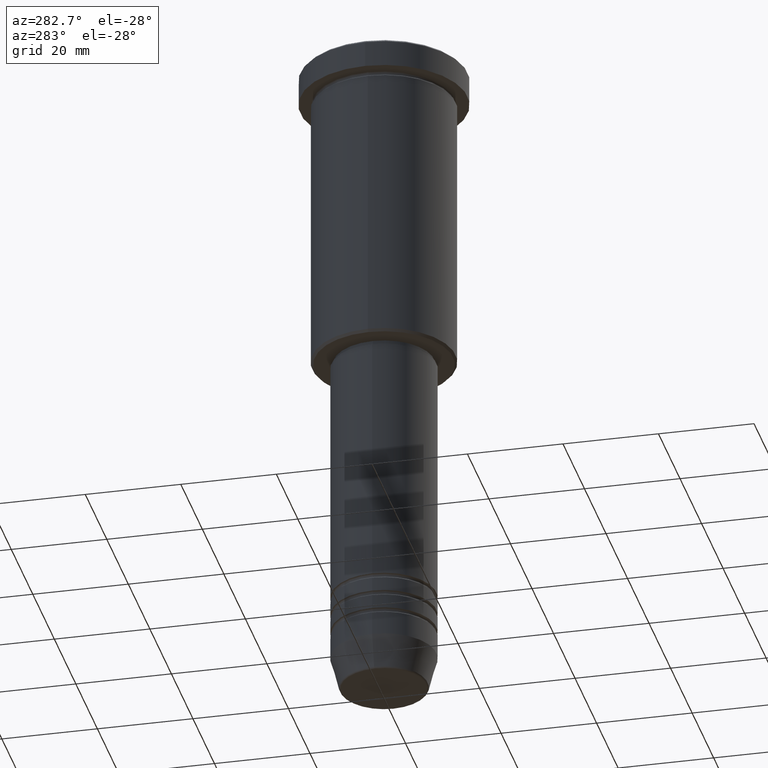
[diagram: clean part render]
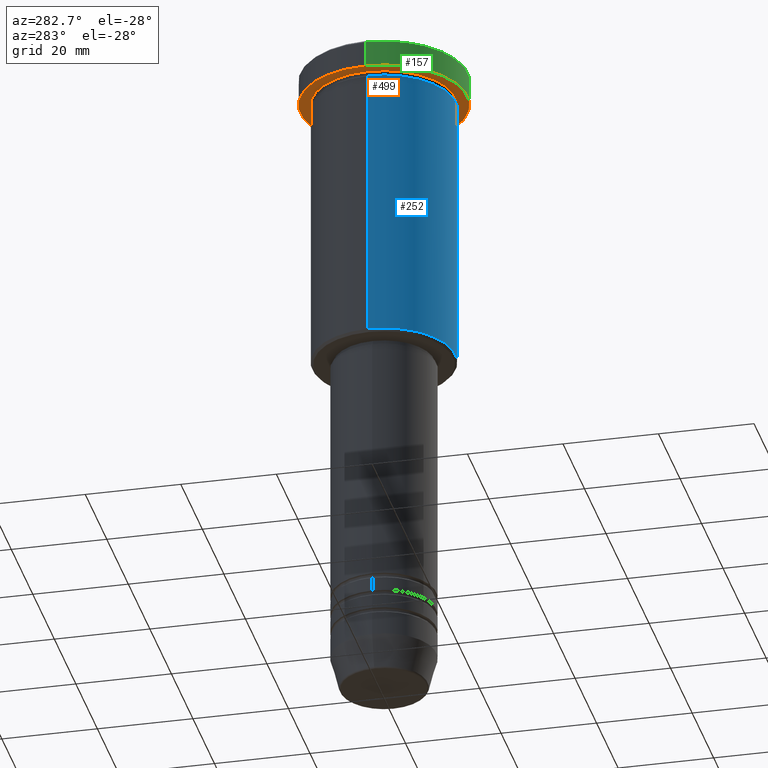
[diagram: same view with three faces highlighted in distinct colors, each labeled with its STEP entity id]
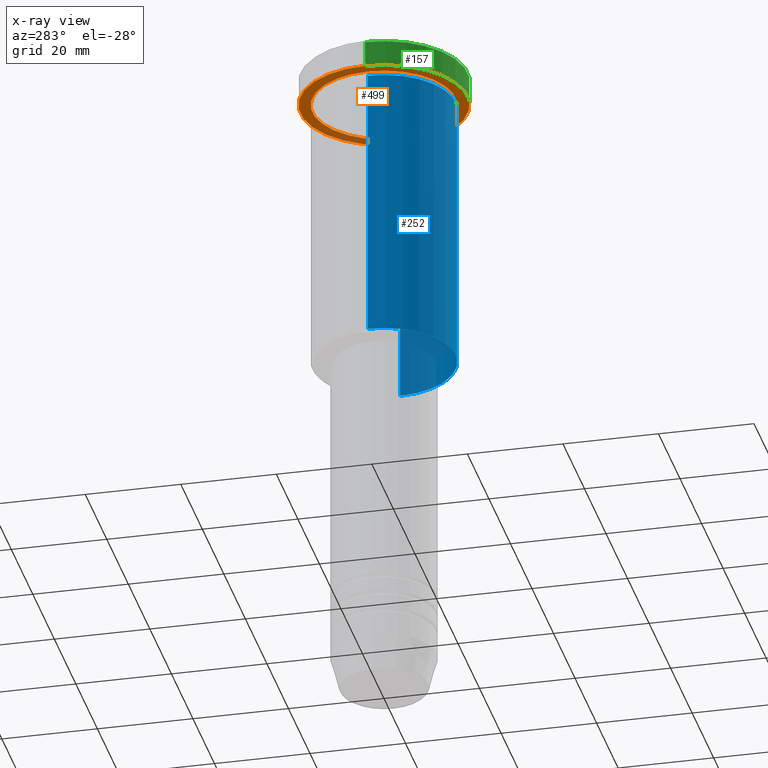
[diagram: x-ray of the same camera — body ghosted, the three highlighted faces saturated]
A machine part, auxiliary view with three faces highlighted in distinct colors.
The next image is the same camera in x-ray (body ghosted, the three faces saturated) — at least one of them is partly hidden behind the body in this view.
Their STEP definitions:

[orange] entity #499 — the highlighted planar face has unit normal (0, 0, -1).
#30 = DIRECTION ( 'NONE',  ( -0.000000000000000000, -0.000000000000000000, 1.000000000000000000 ) ) ;
#37 = VERTEX_POINT ( 'NONE', #913 ) ;
#116 = VERTEX_POINT ( 'NONE', #598 ) ;
#146 = CARTESIAN_POINT ( 'NONE',  ( 0.000000000000000000, 0.000000000000000000, -5.999999999999995559 ) ) ;
#151 = VERTEX_POINT ( 'NONE', #921 ) ;
#178 = EDGE_CURVE ( 'NONE', #37, #151, #182, .T. ) ;
#182 = CIRCLE ( 'NONE', #330, 17.50000000000000000 ) ;
#220 = AXIS2_PLACEMENT_3D ( 'NONE', #146, #30, #406 ) ;
#240 = FACE_OUTER_BOUND ( 'NONE', #1042, .T. ) ;
#268 = ORIENTED_EDGE ( 'NONE', *, *, #1156, .T. ) ;
#330 = AXIS2_PLACEMENT_3D ( 'NONE', #1045, #1038, #662 ) ;
#346 = CARTESIAN_POINT ( 'NONE',  ( 0.000000000000000000, 0.000000000000000000, -5.999999999999995559 ) ) ;
#385 = AXIS2_PLACEMENT_3D ( 'NONE', #518, #882, #862 ) ;
#400 = AXIS2_PLACEMENT_3D ( 'NONE', #346, #708, #696 ) ;
#406 = DIRECTION ( 'NONE',  ( 1.000000000000000000, 0.000000000000000000, 0.000000000000000000 ) ) ;
#434 = CIRCLE ( 'NONE', #220, 17.50000000000000000 ) ;
#439 = EDGE_CURVE ( 'NONE', #818, #116, #994, .T. ) ;
#456 = DIRECTION ( 'NONE',  ( -1.000000000000000000, 0.000000000000000000, -0.000000000000000000 ) ) ;
#464 = CARTESIAN_POINT ( 'NONE',  ( 0.000000000000000000, 17.50000000000000000, -5.999999999999995559 ) ) ;
#499 = ADVANCED_FACE ( 'NONE', ( #700, #240 ), #652, .T. ) ;
#518 = CARTESIAN_POINT ( 'NONE',  ( 0.000000000000000000, 0.000000000000000000, -5.999999999999995559 ) ) ;
#598 = CARTESIAN_POINT ( 'NONE',  ( 15.00000000000000000, 1.836970198721029589E-15, -5.999999999999994671 ) ) ;
#634 = CARTESIAN_POINT ( 'NONE',  ( -15.00000000000000000, 0.000000000000000000, -5.999999999999994671 ) ) ;
#652 = PLANE ( 'NONE',  #924 ) ;
#662 = DIRECTION ( 'NONE',  ( 1.000000000000000000, 0.000000000000000000, 0.000000000000000000 ) ) ;
#696 = DIRECTION ( 'NONE',  ( -1.000000000000000000, 0.000000000000000000, 0.000000000000000000 ) ) ;
#700 = FACE_BOUND ( 'NONE', #906, .T. ) ;
#708 = DIRECTION ( 'NONE',  ( -0.000000000000000000, -0.000000000000000000, 1.000000000000000000 ) ) ;
#818 = VERTEX_POINT ( 'NONE', #634 ) ;
#830 = DIRECTION ( 'NONE',  ( 0.000000000000000000, 0.000000000000000000, -1.000000000000000000 ) ) ;
#843 = CIRCLE ( 'NONE', #385, 15.00000000000000000 ) ;
#862 = DIRECTION ( 'NONE',  ( -1.000000000000000000, 0.000000000000000000, 0.000000000000000000 ) ) ;
#882 = DIRECTION ( 'NONE',  ( -0.000000000000000000, -0.000000000000000000, 1.000000000000000000 ) ) ;
#906 = EDGE_LOOP ( 'NONE', ( #1034, #268 ) ) ;
#913 = CARTESIAN_POINT ( 'NONE',  ( 17.50000000000000000, 0.000000000000000000, -5.999999999999995559 ) ) ;
#921 = CARTESIAN_POINT ( 'NONE',  ( -17.50000000000000000, 2.143131898507868248E-15, -5.999999999999995559 ) ) ;
#924 = AXIS2_PLACEMENT_3D ( 'NONE', #464, #830, #456 ) ;
#994 = CIRCLE ( 'NONE', #400, 15.00000000000000000 ) ;
#1034 = ORIENTED_EDGE ( 'NONE', *, *, #439, .T. ) ;
#1038 = DIRECTION ( 'NONE',  ( -0.000000000000000000, -0.000000000000000000, 1.000000000000000000 ) ) ;
#1042 = EDGE_LOOP ( 'NONE', ( #1131, #1179 ) ) ;
#1045 = CARTESIAN_POINT ( 'NONE',  ( 0.000000000000000000, 0.000000000000000000, -5.999999999999995559 ) ) ;
#1046 = EDGE_CURVE ( 'NONE', #151, #37, #434, .T. ) ;
#1131 = ORIENTED_EDGE ( 'NONE', *, *, #178, .F. ) ;
#1156 = EDGE_CURVE ( 'NONE', #116, #818, #843, .T. ) ;
#1179 = ORIENTED_EDGE ( 'NONE', *, *, #1046, .F. ) ;

[blue] entity #252 — the highlighted cylindrical surface (partial cylindrical patch) has radius 15 mm, axis along (-0, -0, 1).
#13 = ORIENTED_EDGE ( 'NONE', *, *, #1041, .T. ) ;
#33 = VECTOR ( 'NONE', #768, 1000.000000000000000 ) ;
#39 = LINE ( 'NONE', #508, #33 ) ;
#131 = DIRECTION ( 'NONE',  ( -0.000000000000000000, -0.000000000000000000, 1.000000000000000000 ) ) ;
#249 = CARTESIAN_POINT ( 'NONE',  ( 0.000000000000000000, 0.000000000000000000, 0.000000000000000000 ) ) ;
#252 = ADVANCED_FACE ( 'NONE', ( #516 ), #966, .T. ) ;
#260 = ORIENTED_EDGE ( 'NONE', *, *, #713, .F. ) ;
#274 = DIRECTION ( 'NONE',  ( 1.000000000000000000, 0.000000000000000000, 0.000000000000000000 ) ) ;
#342 = DIRECTION ( 'NONE',  ( -0.000000000000000000, -0.000000000000000000, 1.000000000000000000 ) ) ;
#345 = EDGE_CURVE ( 'NONE', #812, #355, #437, .T. ) ;
#355 = VERTEX_POINT ( 'NONE', #380 ) ;
#380 = CARTESIAN_POINT ( 'NONE',  ( 15.00000000000000000, 0.000000000000000000, -6.999999999999995559 ) ) ;
#411 = EDGE_CURVE ( 'NONE', #767, #355, #514, .T. ) ;
#437 = CIRCLE ( 'NONE', #1086, 15.00000000000000000 ) ;
#508 = CARTESIAN_POINT ( 'NONE',  ( -15.00000000000000000, 1.836970198721029589E-15, 0.000000000000000000 ) ) ;
#514 = LINE ( 'NONE', #910, #899 ) ;
#516 = FACE_OUTER_BOUND ( 'NONE', #853, .T. ) ;
#640 = DIRECTION ( 'NONE',  ( 1.000000000000000000, 0.000000000000000000, 0.000000000000000000 ) ) ;
#684 = CARTESIAN_POINT ( 'NONE',  ( 0.000000000000000000, 0.000000000000000000, -65.50000000000000000 ) ) ;
#713 = EDGE_CURVE ( 'NONE', #775, #812, #39, .T. ) ;
#738 = CARTESIAN_POINT ( 'NONE',  ( 0.000000000000000000, 0.000000000000000000, -6.999999999999995559 ) ) ;
#767 = VERTEX_POINT ( 'NONE', #878 ) ;
#768 = DIRECTION ( 'NONE',  ( -0.000000000000000000, -0.000000000000000000, 1.000000000000000000 ) ) ;
#775 = VERTEX_POINT ( 'NONE', #885 ) ;
#812 = VERTEX_POINT ( 'NONE', #984 ) ;
#826 = DIRECTION ( 'NONE',  ( -0.000000000000000000, -0.000000000000000000, 1.000000000000000000 ) ) ;
#833 = DIRECTION ( 'NONE',  ( -0.000000000000000000, -0.000000000000000000, 1.000000000000000000 ) ) ;
#852 = DIRECTION ( 'NONE',  ( -1.000000000000000000, 0.000000000000000000, 0.000000000000000000 ) ) ;
#853 = EDGE_LOOP ( 'NONE', ( #260, #13, #893, #1079 ) ) ;
#878 = CARTESIAN_POINT ( 'NONE',  ( 15.00000000000000000, 0.000000000000000000, -65.50000000000000000 ) ) ;
#885 = CARTESIAN_POINT ( 'NONE',  ( -15.00000000000000000, 1.836970198721029589E-15, -65.50000000000000000 ) ) ;
#893 = ORIENTED_EDGE ( 'NONE', *, *, #411, .T. ) ;
#899 = VECTOR ( 'NONE', #342, 1000.000000000000000 ) ;
#910 = CARTESIAN_POINT ( 'NONE',  ( 15.00000000000000000, 0.000000000000000000, 0.000000000000000000 ) ) ;
#966 = CYLINDRICAL_SURFACE ( 'NONE', #1023, 15.00000000000000000 ) ;
#984 = CARTESIAN_POINT ( 'NONE',  ( -15.00000000000000000, 1.836970198721029589E-15, -6.999999999999995559 ) ) ;
#1023 = AXIS2_PLACEMENT_3D ( 'NONE', #249, #826, #640 ) ;
#1041 = EDGE_CURVE ( 'NONE', #775, #767, #1173, .T. ) ;
#1053 = AXIS2_PLACEMENT_3D ( 'NONE', #684, #131, #852 ) ;
#1079 = ORIENTED_EDGE ( 'NONE', *, *, #345, .F. ) ;
#1086 = AXIS2_PLACEMENT_3D ( 'NONE', #738, #833, #274 ) ;
#1173 = CIRCLE ( 'NONE', #1053, 15.00000000000000000 ) ;

[green] entity #157 — the highlighted cylindrical surface (partial cylindrical patch) has radius 17.5 mm, axis along (-0, -0, 1).
#25 = AXIS2_PLACEMENT_3D ( 'NONE', #535, #804, #350 ) ;
#30 = DIRECTION ( 'NONE',  ( -0.000000000000000000, -0.000000000000000000, 1.000000000000000000 ) ) ;
#37 = VERTEX_POINT ( 'NONE', #913 ) ;
#73 = CYLINDRICAL_SURFACE ( 'NONE', #25, 17.50000000000000000 ) ;
#106 = DIRECTION ( 'NONE',  ( 1.000000000000000000, 0.000000000000000000, 0.000000000000000000 ) ) ;
#146 = CARTESIAN_POINT ( 'NONE',  ( 0.000000000000000000, 0.000000000000000000, -5.999999999999995559 ) ) ;
#151 = VERTEX_POINT ( 'NONE', #921 ) ;
#157 = ADVANCED_FACE ( 'NONE', ( #165 ), #73, .T. ) ;
#165 = FACE_OUTER_BOUND ( 'NONE', #486, .T. ) ;
#183 = CARTESIAN_POINT ( 'NONE',  ( 0.000000000000000000, 0.000000000000000000, -0.5000000000000143219 ) ) ;
#201 = CARTESIAN_POINT ( 'NONE',  ( -17.50000000000000000, 2.143131898507868248E-15, -0.5000000000000143219 ) ) ;
#220 = AXIS2_PLACEMENT_3D ( 'NONE', #146, #30, #406 ) ;
#319 = CIRCLE ( 'NONE', #779, 17.50000000000000000 ) ;
#350 = DIRECTION ( 'NONE',  ( 1.000000000000000000, 0.000000000000000000, 0.000000000000000000 ) ) ;
#406 = DIRECTION ( 'NONE',  ( 1.000000000000000000, 0.000000000000000000, 0.000000000000000000 ) ) ;
#421 = LINE ( 'NONE', #785, #795 ) ;
#432 = CARTESIAN_POINT ( 'NONE',  ( 17.50000000000000000, 0.000000000000000000, -0.5000000000000143219 ) ) ;
#434 = CIRCLE ( 'NONE', #220, 17.50000000000000000 ) ;
#460 = VECTOR ( 'NONE', #1129, 1000.000000000000000 ) ;
#486 = EDGE_LOOP ( 'NONE', ( #778, #565, #489, #1048 ) ) ;
#489 = ORIENTED_EDGE ( 'NONE', *, *, #1090, .T. ) ;
#507 = EDGE_CURVE ( 'NONE', #815, #989, #319, .T. ) ;
#535 = CARTESIAN_POINT ( 'NONE',  ( 0.000000000000000000, 0.000000000000000000, 0.000000000000000000 ) ) ;
#565 = ORIENTED_EDGE ( 'NONE', *, *, #1046, .T. ) ;
#765 = DIRECTION ( 'NONE',  ( -0.000000000000000000, -0.000000000000000000, 1.000000000000000000 ) ) ;
#778 = ORIENTED_EDGE ( 'NONE', *, *, #794, .F. ) ;
#779 = AXIS2_PLACEMENT_3D ( 'NONE', #183, #825, #106 ) ;
#783 = CARTESIAN_POINT ( 'NONE',  ( -17.50000000000000000, 2.143131898507868248E-15, 0.000000000000000000 ) ) ;
#785 = CARTESIAN_POINT ( 'NONE',  ( 17.50000000000000000, 0.000000000000000000, 0.000000000000000000 ) ) ;
#794 = EDGE_CURVE ( 'NONE', #151, #989, #1148, .T. ) ;
#795 = VECTOR ( 'NONE', #765, 1000.000000000000000 ) ;
#804 = DIRECTION ( 'NONE',  ( -0.000000000000000000, -0.000000000000000000, 1.000000000000000000 ) ) ;
#815 = VERTEX_POINT ( 'NONE', #432 ) ;
#825 = DIRECTION ( 'NONE',  ( 0.000000000000000000, 0.000000000000000000, -1.000000000000000000 ) ) ;
#913 = CARTESIAN_POINT ( 'NONE',  ( 17.50000000000000000, 0.000000000000000000, -5.999999999999995559 ) ) ;
#921 = CARTESIAN_POINT ( 'NONE',  ( -17.50000000000000000, 2.143131898507868248E-15, -5.999999999999995559 ) ) ;
#989 = VERTEX_POINT ( 'NONE', #201 ) ;
#1046 = EDGE_CURVE ( 'NONE', #151, #37, #434, .T. ) ;
#1048 = ORIENTED_EDGE ( 'NONE', *, *, #507, .T. ) ;
#1090 = EDGE_CURVE ( 'NONE', #37, #815, #421, .T. ) ;
#1129 = DIRECTION ( 'NONE',  ( -0.000000000000000000, -0.000000000000000000, 1.000000000000000000 ) ) ;
#1148 = LINE ( 'NONE', #783, #460 ) ;